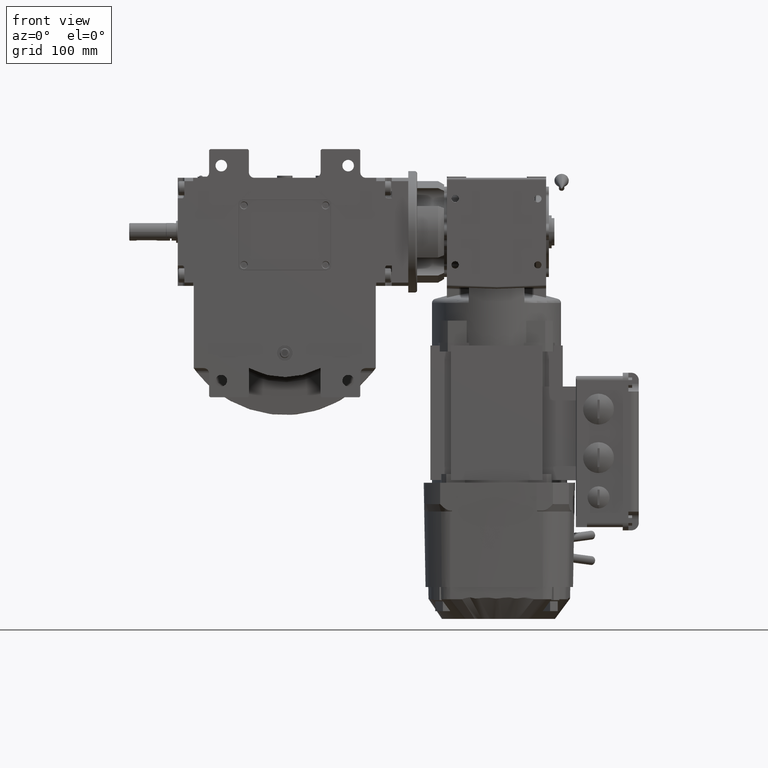
[diagram: clean part render]
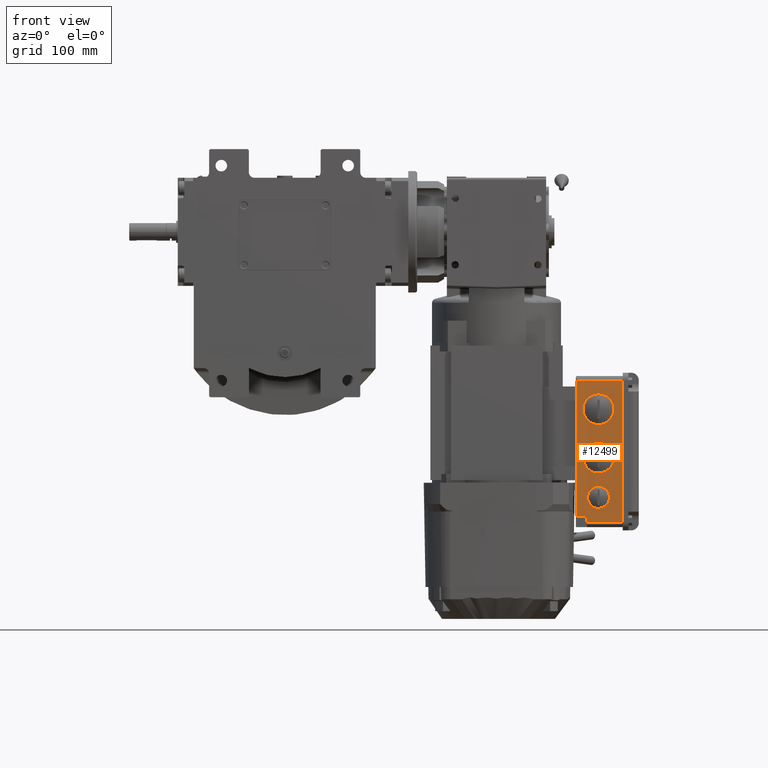
[diagram: same view with one face highlighted and labeled with its STEP entity id]
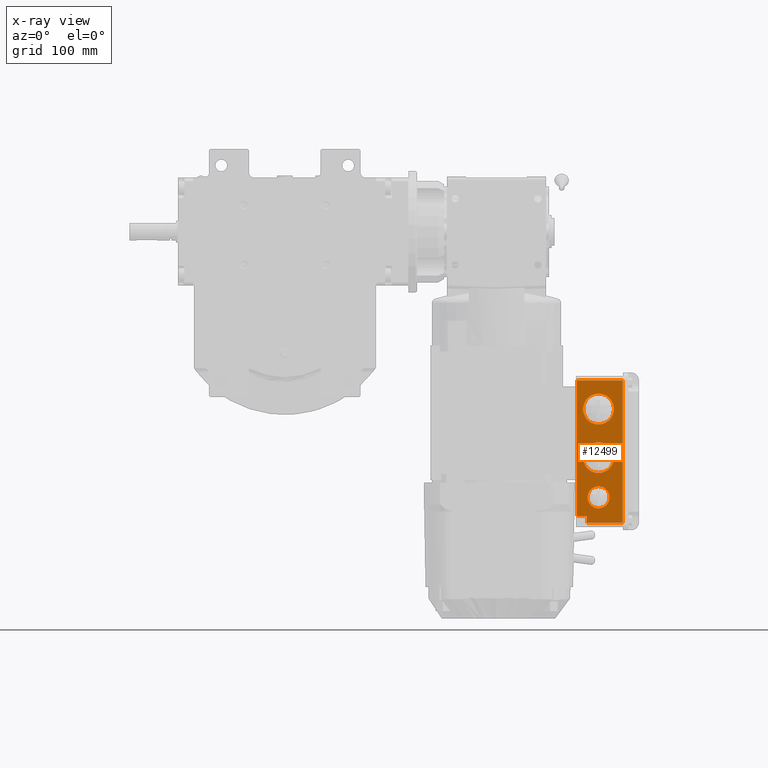
[diagram: x-ray of the same camera — body ghosted, the highlighted face saturated]
A machine part, front view. The second image highlights one B-rep face of the part: STEP entity #12499.
The next image is the same camera in x-ray: the body ghosted, the highlighted face saturated — about 0% of this face is hidden behind the body in this view.
In plain terms, the highlighted planar face has unit normal (-0, -1, -0).
Its self-contained STEP definition (entity closure, byte-faithful):
#823 = EDGE_CURVE ( 'NONE', #25724, #2242, #100669, .T. ) ;
#1431 = CARTESIAN_POINT ( 'NONE',  ( 240.6999999999999886, -92.49999999999997158, -29.00000000000105516 ) ) ;
#2242 = VERTEX_POINT ( 'NONE', #87258 ) ;
#2449 = LINE ( 'NONE', #88173, #3238 ) ;
#3139 = DIRECTION ( 'NONE',  ( 1.000000000000000000, 2.035031775951791969E-47, -4.218847493575594854E-15 ) ) ;
#3238 = VECTOR ( 'NONE', #40722, 1000.000000000000000 ) ;
#5028 = DIRECTION ( 'NONE',  ( 1.000000000000000000, 0.000000000000000000, -4.212899870232098959E-15 ) ) ;
#5386 = CARTESIAN_POINT ( 'NONE',  ( 204.6999999999999886, -92.49999999999997158, -29.00000000000092371 ) ) ;
#7518 = ORIENTED_EDGE ( 'NONE', *, *, #17651, .T. ) ;
#9054 = CARTESIAN_POINT ( 'NONE',  ( 250.6999999999999886, -92.49999999999997158, -29.00000000000105516 ) ) ;
#11241 = DIRECTION ( 'NONE',  ( -1.000000000000000000, -2.035031775951791969E-47, 4.218847493575594854E-15 ) ) ;
#12499 = ADVANCED_FACE ( 'NONE', ( #60701, #54526, #21419, #76014 ), #46874, .T. ) ;
#12633 = AXIS2_PLACEMENT_3D ( 'NONE', #5386, #46206, #30880 ) ;
#12653 = EDGE_CURVE ( 'NONE', #98441, #68670, #63751, .T. ) ;
#14754 = EDGE_CURVE ( 'NONE', #74934, #32567, #33236, .T. ) ;
#15011 = CARTESIAN_POINT ( 'NONE',  ( 240.6999999999999886, -92.49999999999997158, -29.00000000000105516 ) ) ;
#15422 = ORIENTED_EDGE ( 'NONE', *, *, #97587, .T. ) ;
#17651 = EDGE_CURVE ( 'NONE', #36734, #74934, #50227, .T. ) ;
#18171 = CARTESIAN_POINT ( 'NONE',  ( 134.6999999999999886, -114.4999999999999858, -29.00000000000052935 ) ) ;
#18945 = VERTEX_POINT ( 'NONE', #39083 ) ;
#18970 = LINE ( 'NONE', #41941, #31820 ) ;
#19513 = ORIENTED_EDGE ( 'NONE', *, *, #40063, .T. ) ;
#21376 = DIRECTION ( 'NONE',  ( -4.218847493575594854E-15, 6.308816818961193505E-48, 1.000000000000000000 ) ) ;
#21419 = FACE_BOUND ( 'NONE', #61967, .T. ) ;
#24722 = LINE ( 'NONE', #95622, #33721 ) ;
#25063 = CARTESIAN_POINT ( 'NONE',  ( 190.7000000000089983, -92.49999999999997158, -29.00000000000079226 ) ) ;
#25724 = VERTEX_POINT ( 'NONE', #73931 ) ;
#26589 = ORIENTED_EDGE ( 'NONE', *, *, #64768, .T. ) ;
#27873 = AXIS2_PLACEMENT_3D ( 'NONE', #30088, #91829, #100481 ) ;
#28532 = DIRECTION ( 'NONE',  ( -4.218847493575594854E-15, 6.308816818961193505E-48, 1.000000000000000000 ) ) ;
#29615 = CIRCLE ( 'NONE', #50778, 13.99999999999099209 ) ;
#30063 = EDGE_CURVE ( 'NONE', #87654, #75341, #65154, .T. ) ;
#30088 = CARTESIAN_POINT ( 'NONE',  ( 199.1999999999999886, -72.00000000000001421, -29.00000000000079226 ) ) ;
#30217 = EDGE_LOOP ( 'NONE', ( #89527, #69614 ) ) ;
#30538 = CARTESIAN_POINT ( 'NONE',  ( 160.7000000000000171, -92.49999999999997158, -29.00000000000066080 ) ) ;
#30880 = DIRECTION ( 'NONE',  ( 1.000000000000000000, 0.000000000000000000, -4.212899870232098959E-15 ) ) ;
#30896 = ORIENTED_EDGE ( 'NONE', *, *, #14754, .T. ) ;
#31272 = VERTEX_POINT ( 'NONE', #18171 ) ;
#31820 = VECTOR ( 'NONE', #3139, 1000.000000000000000 ) ;
#32567 = VERTEX_POINT ( 'NONE', #34056 ) ;
#33236 = LINE ( 'NONE', #72995, #64552 ) ;
#33721 = VECTOR ( 'NONE', #49697, 1000.000000000000000 ) ;
#33729 = DIRECTION ( 'NONE',  ( 1.000000000000000000, 2.035031775951791969E-47, -4.218847493575594854E-15 ) ) ;
#33916 = CARTESIAN_POINT ( 'NONE',  ( 257.6999999999999886, -74.50000000000001421, -29.00000000000105516 ) ) ;
#34056 = CARTESIAN_POINT ( 'NONE',  ( 263.6999999999999886, -82.00000000000001421, -29.00000000000105516 ) ) ;
#34203 = AXIS2_PLACEMENT_3D ( 'NONE', #51414, #90705, #35095 ) ;
#35095 = DIRECTION ( 'NONE',  ( 1.000000000000000000, 0.000000000000000000, -4.212899870232098959E-15 ) ) ;
#36319 = EDGE_LOOP ( 'NONE', ( #30896, #73925, #95994, #55279, #15422, #7518 ) ) ;
#36734 = VERTEX_POINT ( 'NONE', #38387 ) ;
#38179 = VECTOR ( 'NONE', #57364, 1000.000000000000000 ) ;
#38387 = CARTESIAN_POINT ( 'NONE',  ( 257.6999999999999886, -73.00000000000001421, -29.00000000000105516 ) ) ;
#39083 = CARTESIAN_POINT ( 'NONE',  ( 263.6999999999999886, -114.4999999999999858, -29.00000000000105516 ) ) ;
#40063 = EDGE_CURVE ( 'NONE', #75341, #87654, #43584, .T. ) ;
#40722 = DIRECTION ( 'NONE',  ( -2.035031775951792212E-47, -1.000000000000000000, -6.308816818961193505E-48 ) ) ;
#41221 = DIRECTION ( 'NONE',  ( 1.000000000000000000, 0.000000000000000000, -4.163336342339791610E-15 ) ) ;
#41941 = CARTESIAN_POINT ( 'NONE',  ( 199.1999999999999886, -73.00000000000001421, -29.00000000000079226 ) ) ;
#43584 = CIRCLE ( 'NONE', #12633, 13.99999999999099209 ) ;
#45427 = CARTESIAN_POINT ( 'NONE',  ( 134.6999999999999886, -73.00000000000001421, -29.00000000000052935 ) ) ;
#46206 = DIRECTION ( 'NONE',  ( -4.218847493575594854E-15, 6.308816818961193505E-48, 1.000000000000000000 ) ) ;
#46874 = PLANE ( 'NONE',  #27873 ) ;
#47879 = DIRECTION ( 'NONE',  ( -4.218847493575594854E-15, 6.308816818961193505E-48, 1.000000000000000000 ) ) ;
#49285 = EDGE_LOOP ( 'NONE', ( #62399, #26589 ) ) ;
#49558 = AXIS2_PLACEMENT_3D ( 'NONE', #15011, #99209, #84925 ) ;
#49697 = DIRECTION ( 'NONE',  ( -2.035031775951792212E-47, -1.000000000000000000, -6.308816818961193505E-48 ) ) ;
#50227 = LINE ( 'NONE', #33916, #38179 ) ;
#50778 = AXIS2_PLACEMENT_3D ( 'NONE', #97399, #28532, #5028 ) ;
#51025 = LINE ( 'NONE', #82188, #52285 ) ;
#51414 = CARTESIAN_POINT ( 'NONE',  ( 204.6999999999999886, -92.49999999999997158, -29.00000000000092371 ) ) ;
#52285 = VECTOR ( 'NONE', #11241, 1000.000000000000000 ) ;
#54412 = VERTEX_POINT ( 'NONE', #45427 ) ;
#54526 = FACE_BOUND ( 'NONE', #30217, .T. ) ;
#55279 = ORIENTED_EDGE ( 'NONE', *, *, #58424, .F. ) ;
#56414 = CARTESIAN_POINT ( 'NONE',  ( 218.7000000000000171, -92.49999999999997158, -29.00000000000092371 ) ) ;
#56815 = CARTESIAN_POINT ( 'NONE',  ( 230.6999999999889894, -92.49999999999997158, -29.00000000000092371 ) ) ;
#57024 = CARTESIAN_POINT ( 'NONE',  ( 257.6999999999999886, -82.00000000000001421, -29.00000000000105516 ) ) ;
#57364 = DIRECTION ( 'NONE',  ( -2.035031775951792212E-47, -1.000000000000000000, -6.308816818961193505E-48 ) ) ;
#57729 = ORIENTED_EDGE ( 'NONE', *, *, #30063, .T. ) ;
#58424 = EDGE_CURVE ( 'NONE', #54412, #31272, #2449, .T. ) ;
#60508 = AXIS2_PLACEMENT_3D ( 'NONE', #1431, #47879, #41221 ) ;
#60701 = FACE_OUTER_BOUND ( 'NONE', #36319, .T. ) ;
#61967 = EDGE_LOOP ( 'NONE', ( #19513, #57729 ) ) ;
#62399 = ORIENTED_EDGE ( 'NONE', *, *, #12653, .T. ) ;
#63751 = CIRCLE ( 'NONE', #60508, 10.00000000001091749 ) ;
#64552 = VECTOR ( 'NONE', #33729, 1000.000000000000000 ) ;
#64768 = EDGE_CURVE ( 'NONE', #68670, #98441, #65862, .T. ) ;
#65154 = CIRCLE ( 'NONE', #34203, 13.99999999999099209 ) ;
#65862 = CIRCLE ( 'NONE', #49558, 10.00000000001091749 ) ;
#68627 = EDGE_CURVE ( 'NONE', #32567, #18945, #24722, .T. ) ;
#68670 = VERTEX_POINT ( 'NONE', #56815 ) ;
#69614 = ORIENTED_EDGE ( 'NONE', *, *, #80672, .T. ) ;
#72995 = CARTESIAN_POINT ( 'NONE',  ( 230.9499999999999886, -82.00000000000001421, -29.00000000000092371 ) ) ;
#73925 = ORIENTED_EDGE ( 'NONE', *, *, #68627, .T. ) ;
#73931 = CARTESIAN_POINT ( 'NONE',  ( 174.6999999999999886, -92.49999999999997158, -29.00000000000079226 ) ) ;
#74564 = EDGE_CURVE ( 'NONE', #18945, #31272, #51025, .T. ) ;
#74934 = VERTEX_POINT ( 'NONE', #57024 ) ;
#75341 = VERTEX_POINT ( 'NONE', #56414 ) ;
#76014 = FACE_BOUND ( 'NONE', #49285, .T. ) ;
#76478 = DIRECTION ( 'NONE',  ( 1.000000000000000000, 0.000000000000000000, -4.212899870232098959E-15 ) ) ;
#80672 = EDGE_CURVE ( 'NONE', #2242, #25724, #29615, .T. ) ;
#82188 = CARTESIAN_POINT ( 'NONE',  ( 263.6999999999999886, -114.4999999999999858, -29.00000000000105516 ) ) ;
#84925 = DIRECTION ( 'NONE',  ( 1.000000000000000000, 0.000000000000000000, -4.163336342339791610E-15 ) ) ;
#87258 = CARTESIAN_POINT ( 'NONE',  ( 146.7000000000089983, -92.49999999999997158, -29.00000000000066080 ) ) ;
#87654 = VERTEX_POINT ( 'NONE', #25063 ) ;
#88173 = CARTESIAN_POINT ( 'NONE',  ( 134.6999999999999886, -72.00000000000001421, -29.00000000000052935 ) ) ;
#89527 = ORIENTED_EDGE ( 'NONE', *, *, #823, .T. ) ;
#90705 = DIRECTION ( 'NONE',  ( -4.218847493575594854E-15, 6.308816818961193505E-48, 1.000000000000000000 ) ) ;
#91829 = DIRECTION ( 'NONE',  ( 4.218847493575594854E-15, 6.308816818961107209E-48, -1.000000000000000000 ) ) ;
#95622 = CARTESIAN_POINT ( 'NONE',  ( 263.6999999999999886, -72.00000000000001421, -29.00000000000105516 ) ) ;
#95768 = AXIS2_PLACEMENT_3D ( 'NONE', #30538, #21376, #76478 ) ;
#95994 = ORIENTED_EDGE ( 'NONE', *, *, #74564, .T. ) ;
#97399 = CARTESIAN_POINT ( 'NONE',  ( 160.7000000000000171, -92.49999999999997158, -29.00000000000066080 ) ) ;
#97587 = EDGE_CURVE ( 'NONE', #54412, #36734, #18970, .T. ) ;
#98441 = VERTEX_POINT ( 'NONE', #9054 ) ;
#99209 = DIRECTION ( 'NONE',  ( -4.218847493575594854E-15, 6.308816818961193505E-48, 1.000000000000000000 ) ) ;
#100481 = DIRECTION ( 'NONE',  ( -2.035031775951792212E-47, -1.000000000000000000, -6.308816818961193505E-48 ) ) ;
#100669 = CIRCLE ( 'NONE', #95768, 13.99999999999099209 ) ;